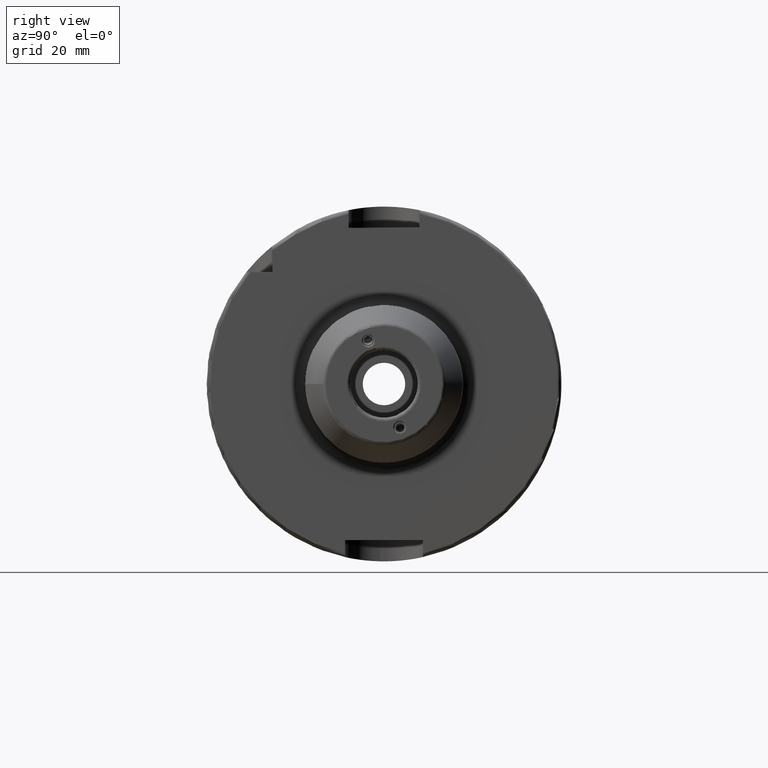
[diagram: clean part render]
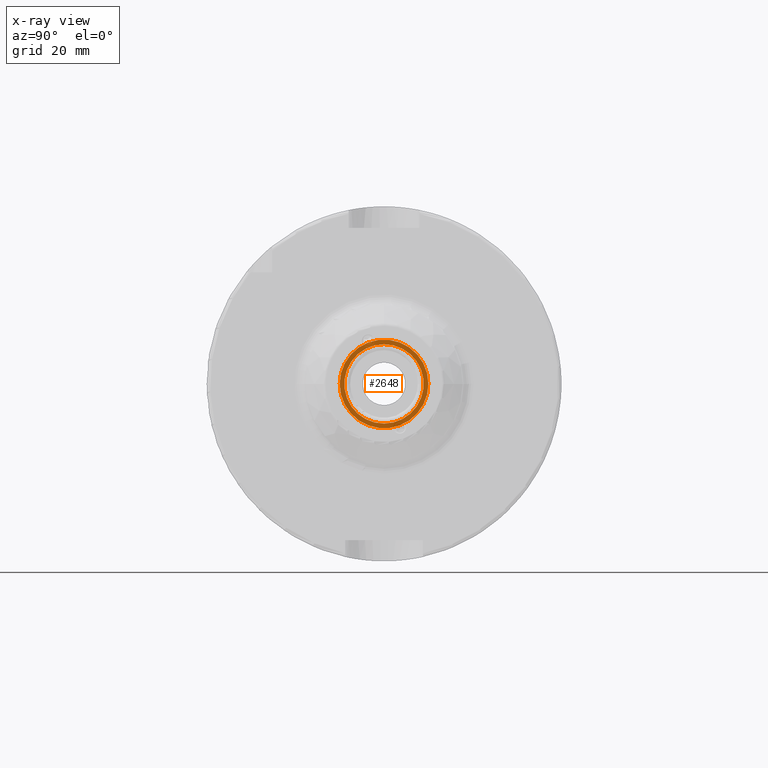
[diagram: x-ray — body ghosted, one internal face saturated and labeled with its STEP entity id]
A machine part, right view, then the same camera in x-ray: the body is ghosted and one INTERNAL B-rep face — a face not visible from any outside direction — is saturated and labeled: STEP entity #2648.
In plain terms, the highlighted planar face has unit normal (-1, 0, 0).
Its self-contained STEP definition (entity closure, byte-faithful):
#106=FACE_BOUND('',#896,.T.);
#146=PLANE('',#2970);
#549=CIRCLE('',#2952,11.188101);
#560=CIRCLE('',#2968,12.5);
#561=CIRCLE('',#2969,12.5);
#744=FACE_OUTER_BOUND('',#895,.T.);
#895=EDGE_LOOP('',(#2448,#2449));
#896=EDGE_LOOP('',(#2450));
#1259=VERTEX_POINT('',#5840);
#1268=VERTEX_POINT('',#5867);
#1269=VERTEX_POINT('',#5869);
#1658=EDGE_CURVE('',#1259,#1259,#549,.T.);
#1671=EDGE_CURVE('',#1268,#1269,#560,.T.);
#1672=EDGE_CURVE('',#1269,#1268,#561,.T.);
#2448=ORIENTED_EDGE('',*,*,#1672,.F.);
#2449=ORIENTED_EDGE('',*,*,#1671,.F.);
#2450=ORIENTED_EDGE('',*,*,#1658,.T.);
#2648=ADVANCED_FACE('',(#744,#106),#146,.F.);
#2952=AXIS2_PLACEMENT_3D('',#5842,#3664,#3665);
#2968=AXIS2_PLACEMENT_3D('',#5870,#3698,#3699);
#2969=AXIS2_PLACEMENT_3D('',#5871,#3700,#3701);
#2970=AXIS2_PLACEMENT_3D('',#5872,#3702,#3703);
#3664=DIRECTION('center_axis',(-1.,0.,0.));
#3665=DIRECTION('ref_axis',(0.,0.,1.));
#3698=DIRECTION('center_axis',(-1.,0.,0.));
#3699=DIRECTION('ref_axis',(0.,0.,1.));
#3700=DIRECTION('center_axis',(-1.,0.,0.));
#3701=DIRECTION('ref_axis',(0.,0.,1.));
#3702=DIRECTION('center_axis',(-1.,0.,0.));
#3703=DIRECTION('ref_axis',(0.,0.,1.));
#5840=CARTESIAN_POINT('',(22.5,-1.37014720781873E-15,-11.188101));
#5842=CARTESIAN_POINT('Origin',(22.5,0.,0.));
#5867=CARTESIAN_POINT('',(22.5,-12.5,1.53080849893419E-15));
#5869=CARTESIAN_POINT('',(22.5,12.5,0.));
#5870=CARTESIAN_POINT('Origin',(22.5,0.,0.));
#5871=CARTESIAN_POINT('Origin',(22.5,0.,0.));
#5872=CARTESIAN_POINT('Origin',(22.5,10.,0.));